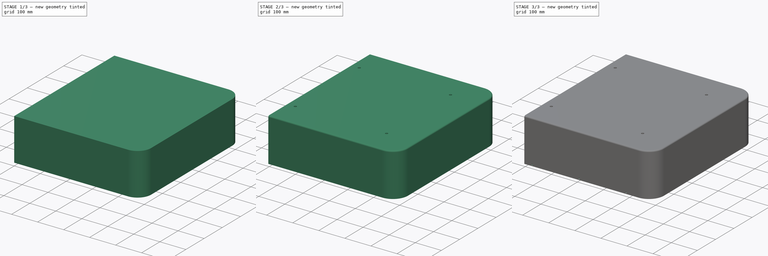
[diagram: build sequence overview — one tinted view per stage of 3, left to right]
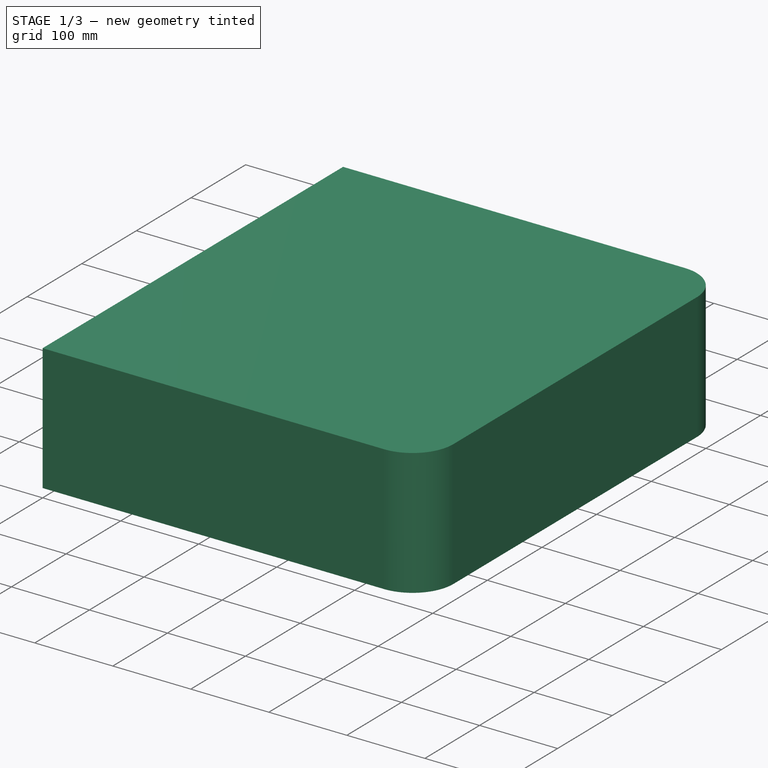
[diagram: stage 1 of 3 — iso view after this stage's code; geometry added in this stage tinted green]
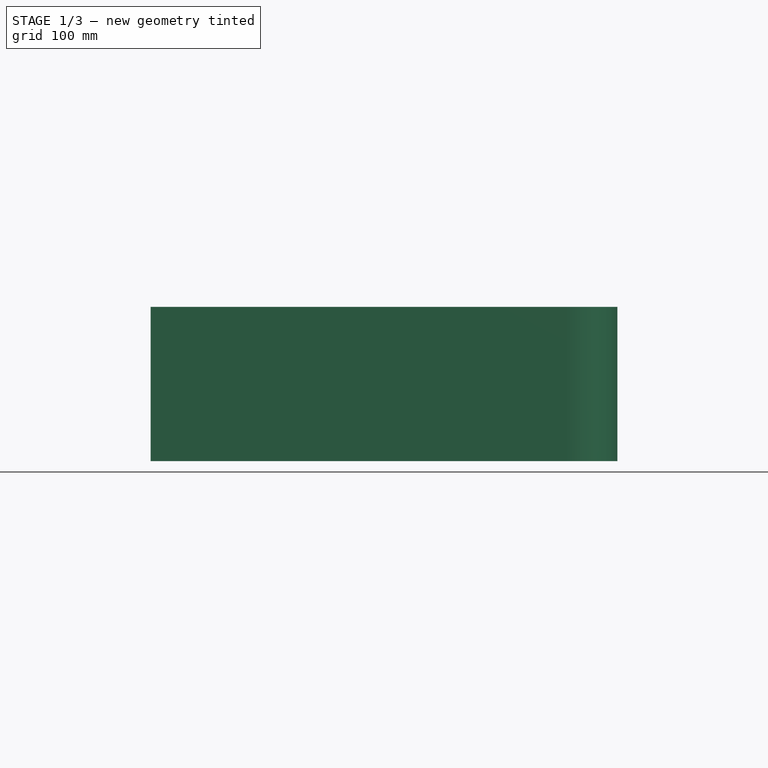
[diagram: stage 1 of 3 — front view after this stage's code; geometry added in this stage tinted green]
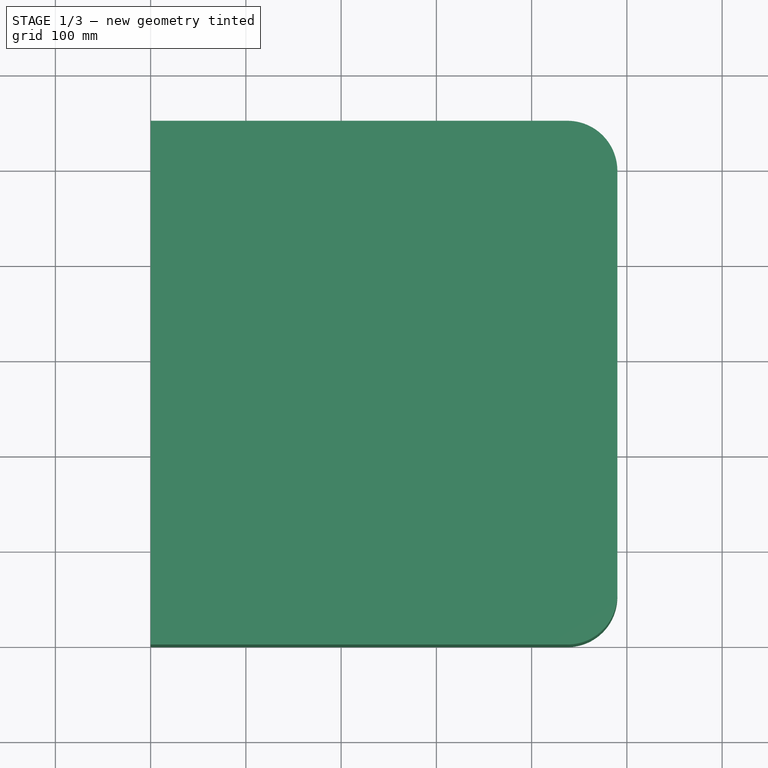
[diagram: stage 1 of 3 — top view after this stage's code; geometry added in this stage tinted green]
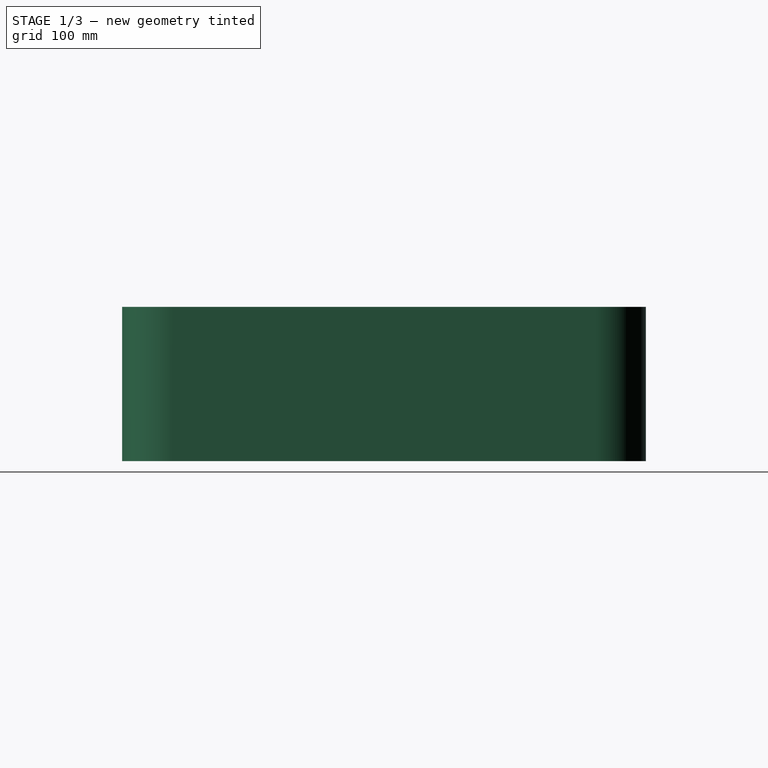
[diagram: stage 1 of 3 — right view after this stage's code; geometry added in this stage tinted green]
FCSTD DOCUMENT  (FreeCAD 0.20R29410 (Git))
Label: AGV02-104A_Top cover
License: All rights reserved
LicenseURL: http://en.wikipedia.org/wiki/All_rights_reserved
objects: Sketcher::SketchObject×4, PartDesign::Pocket×2, PartDesign::Pad×1, PartDesign::Fillet×1, PartDesign::Thickness×1, PartDesign::Hole×1, PartDesign::Plane×1, PartDesign::Mirrored×1, PartDesign::Body×1
note: 19 computed .brp shape members not serialized (recipe doc carries the construction recipe); baked Part::Feature solids carry a one-line shape summary decoded from their .brp

FEATURE [Sketcher::SketchObject] Sketch
  FullyConstrained = true
  MapMode = 5
  Support = -> [XY_Plane]
  sketch-geometry (4):
    g0: LineSegment StartX=0 StartY=0 StartZ=0 EndX=490 EndY=0 EndZ=0
    g1: LineSegment StartX=490 StartY=0 StartZ=0 EndX=490 EndY=550 EndZ=0
    g2: LineSegment StartX=490 StartY=550 StartZ=0 EndX=0 EndY=550 EndZ=0
    g3: LineSegment StartX=0 StartY=550 StartZ=0 EndX=0 EndY=0 EndZ=0
  constraints (11):
    c: Coincident(g0,g1)
    c: Coincident(g1,g2)
    c: Coincident(g2,g3)
    c: Coincident(g3,g0)
    c: Horizontal(g0)
    c: Horizontal(g2)
    c: Vertical(g1)
    c: Vertical(g3)
    c: Coincident(g0,g-1)
    c: DistanceX(g0,g0) = 490
    c: DistanceY(g3,g3) = 550
FEATURE [PartDesign::Pad] Pad
  Direction = (0,0,1)
  Length = 162
  Length2 = 10
  Profile = -> Sketch
  ReferenceAxis = -> Sketch [N_Axis]
  Type = 0
FEATURE [PartDesign::Fillet] Fillet
  Base = -> Pad [Edge2,Edge5]
  BaseFeature = -> Pad
  Radius = 52.5
  SupportTransform = false
  UseAllEdges = false
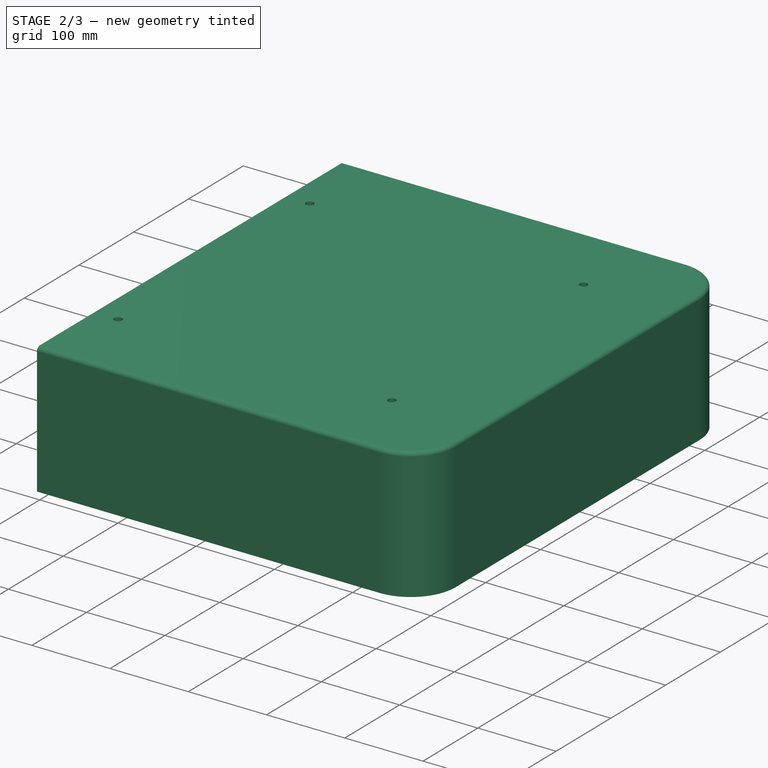
[diagram: stage 2 of 3 — iso view after this stage's code; geometry added in this stage tinted green]
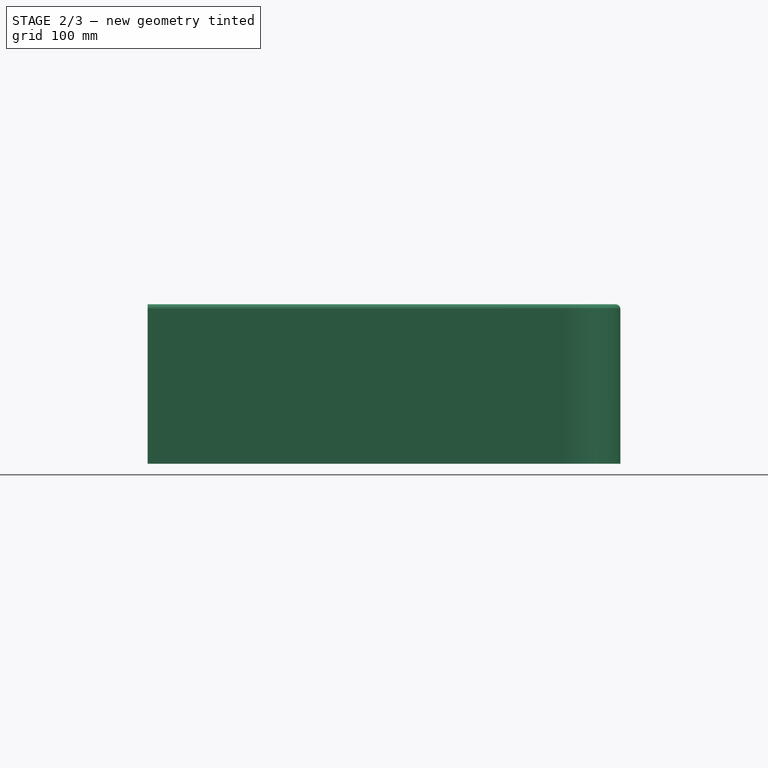
[diagram: stage 2 of 3 — front view after this stage's code; geometry added in this stage tinted green]
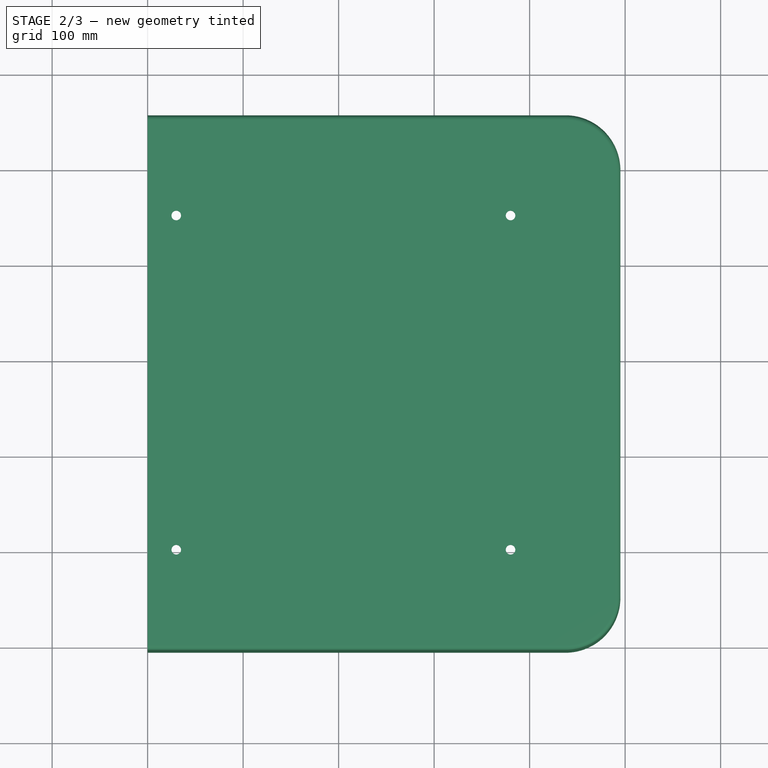
[diagram: stage 2 of 3 — top view after this stage's code; geometry added in this stage tinted green]
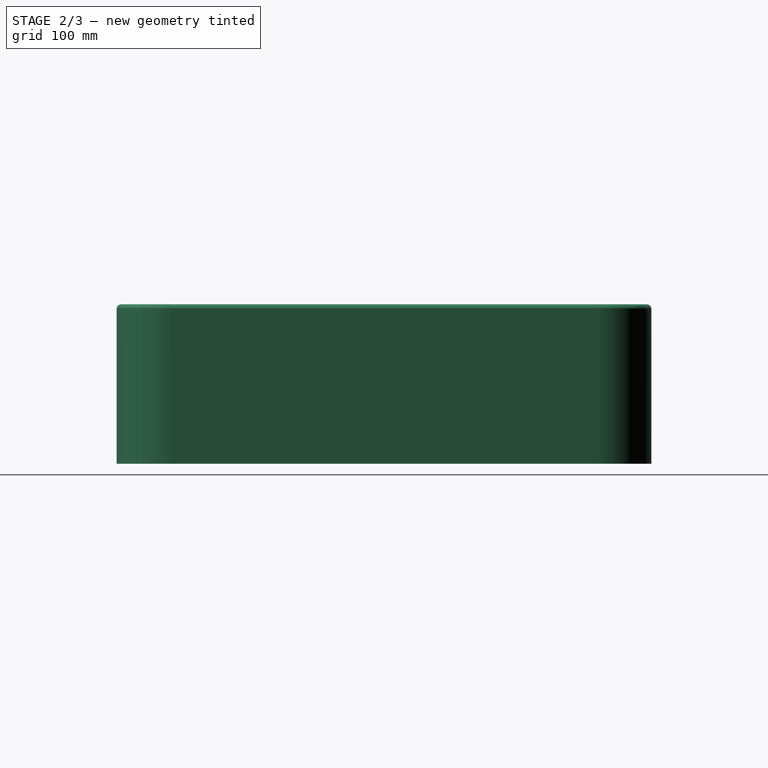
[diagram: stage 2 of 3 — right view after this stage's code; geometry added in this stage tinted green]
FEATURE [PartDesign::Thickness] Thickness
  Base = -> Fillet [Face2]
  BaseFeature = -> Fillet
  Intersection = false
  Join = 0
  Mode = 0
  SupportTransform = false
  Value = 5
FEATURE [Sketcher::SketchObject] Sketch001
  FullyConstrained = false
  MapMode = 5
  Placement = pos=(-5,0,0) rot=(0.57735,-0.57735,-0.57735;2.0944rad)
  Support = -> [Thickness]
  sketch-geometry (4):
    g0: LineSegment StartX=-647.152 StartY=227.302 StartZ=0 EndX=27.9367 EndY=227.302 EndZ=0
    g1: LineSegment StartX=27.9367 StartY=227.302 StartZ=0 EndX=27.9367 EndY=-35.5798 EndZ=0
    g2: LineSegment StartX=27.9367 StartY=-35.5798 StartZ=0 EndX=-647.152 EndY=-35.5798 EndZ=0
    g3: LineSegment StartX=-647.152 StartY=-35.5798 StartZ=0 EndX=-647.152 EndY=227.302 EndZ=0
  constraints (8):
    c: Coincident(g0,g1)
    c: Coincident(g1,g2)
    c: Coincident(g2,g3)
    c: Coincident(g3,g0)
    c: Horizontal(g0)
    c: Horizontal(g2)
    c: Vertical(g1)
    c: Vertical(g3)
FEATURE [PartDesign::Pocket] Pocket
  BaseFeature = -> Thickness
  Direction = (1,0,0)
  Length = 5
  Length2 = 5
  Profile = -> Sketch001
  ReferenceAxis = -> Sketch001 [N_Axis]
  Type = 0
FEATURE [Sketcher::SketchObject] Sketch002
  FullyConstrained = true
  MapMode = 5
  Placement = pos=(0,0,167) rot=(0,0,1;0rad)
  Support = -> [Pocket]
  sketch-geometry (4):
    g0: Circle CenterX=380 CenterY=100 CenterZ=0 NormalX=0 NormalY=0 NormalZ=1 AngleXU=0 Radius=5
    g1: Circle CenterX=30 CenterY=100 CenterZ=0 NormalX=0 NormalY=0 NormalZ=1 AngleXU=0 Radius=5
    g2: Circle CenterX=30 CenterY=450 CenterZ=0 NormalX=0 NormalY=0 NormalZ=1 AngleXU=0 Radius=5
    g3: Circle CenterX=380 CenterY=450 CenterZ=0 NormalX=0 NormalY=0 NormalZ=1 AngleXU=0 Radius=5
  constraints (12):
    c: Diameter(g0) = 10
    c: Diameter(g1) = 10
    c: Diameter(g2) = 10
    c: Diameter(g3) = 10
    c: Horizontal(g3,g2)
    c: Horizontal(g1,g0)
    c: Vertical(g0,g3)
    c: Vertical(g1,g2)
    c: DistanceX(g2,g3) = 350
    c: DistanceY(g0,g3) = 350
    c: DistanceY(g-1,g1) = 100
    c: DistanceX(g-1,g0) = 380
FEATURE [PartDesign::Pocket] Pocket001
  BaseFeature = -> Pocket
  Direction = (0,0,-1)
  Length = 5
  Length2 = 5
  Profile = -> Sketch002
  ReferenceAxis = -> Sketch002 [N_Axis]
  Type = 1
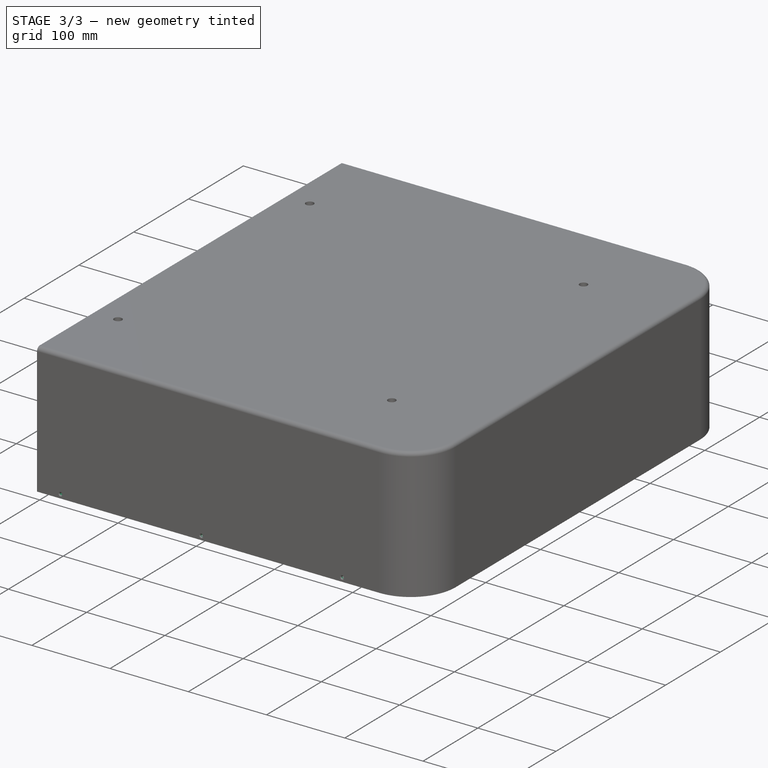
[diagram: stage 3 of 3 — iso view after this stage's code; geometry added in this stage tinted green]
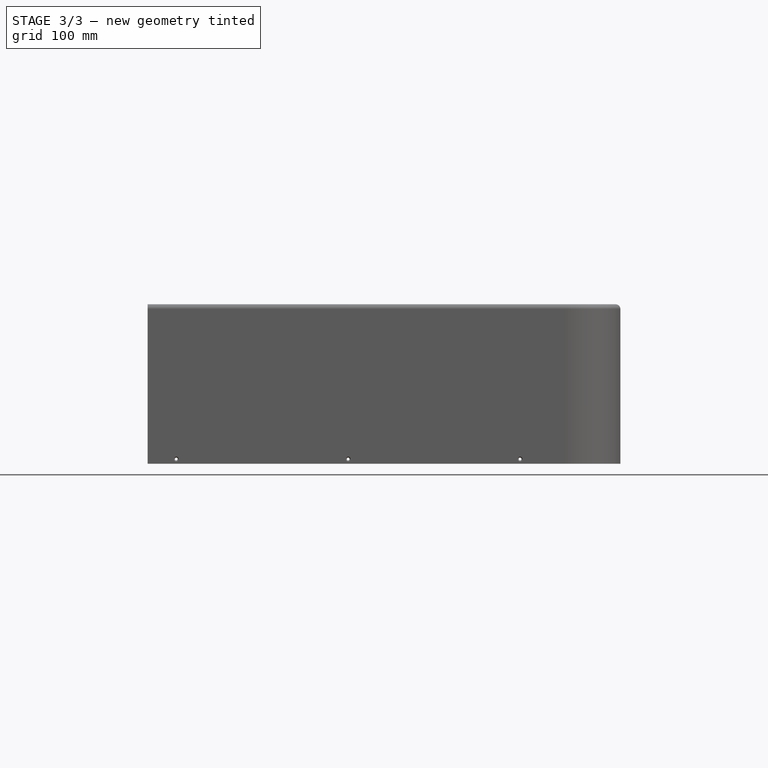
[diagram: stage 3 of 3 — front view after this stage's code; geometry added in this stage tinted green]
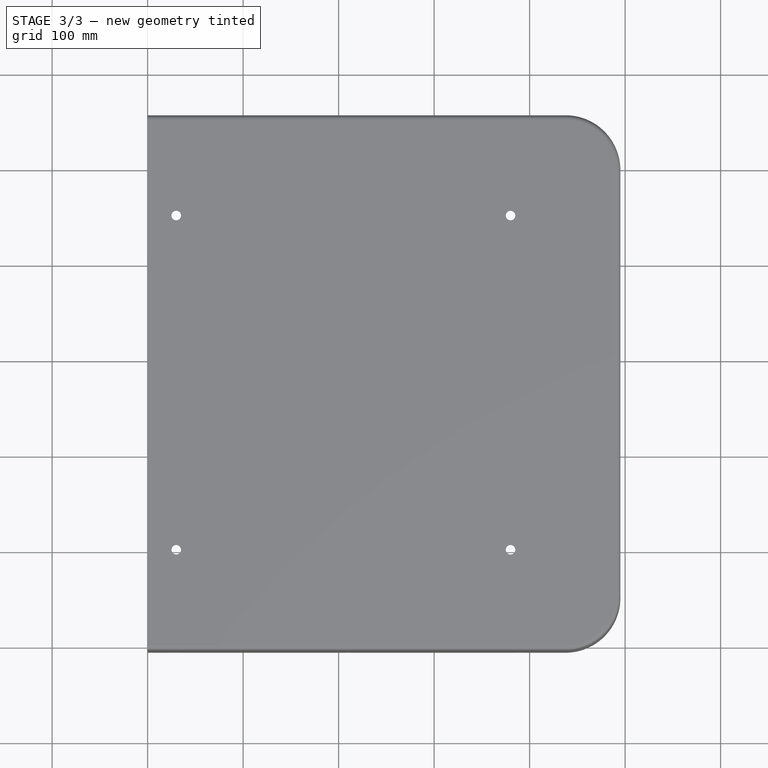
[diagram: stage 3 of 3 — top view after this stage's code; geometry added in this stage tinted green]
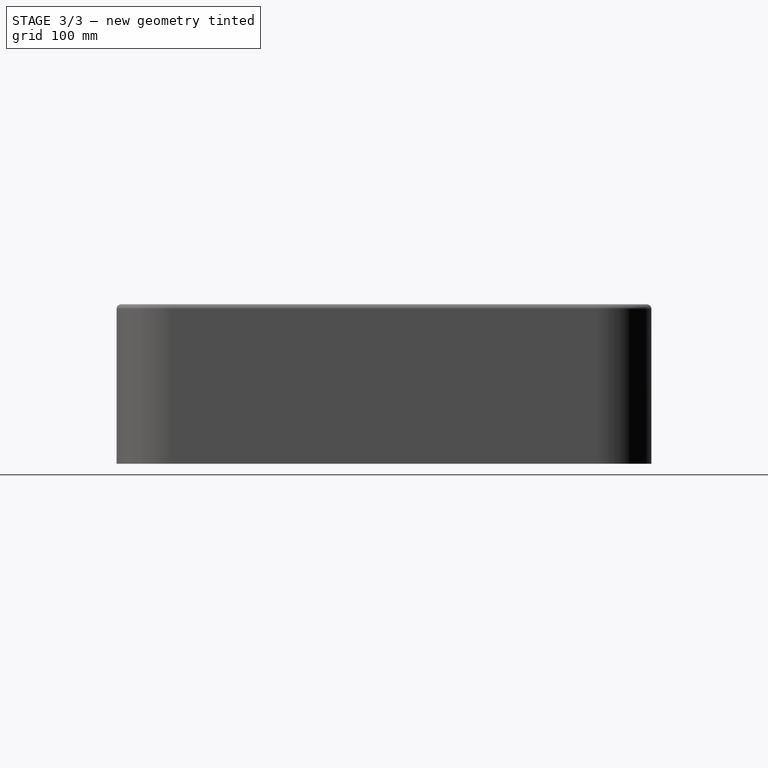
[diagram: stage 3 of 3 — right view after this stage's code; geometry added in this stage tinted green]
FEATURE [Sketcher::SketchObject] Sketch003
  FullyConstrained = false
  MapMode = 5
  Placement = pos=(0,-5,0) rot=(1,0,0;1.5708rad)
  Support = -> [Pocket001]
  sketch-geometry (3):
    g0: Circle CenterX=30 CenterY=5 CenterZ=0 NormalX=0 NormalY=0 NormalZ=1 AngleXU=0 Radius=3.18237
    g1: Circle CenterX=210 CenterY=5 CenterZ=0 NormalX=0 NormalY=0 NormalZ=1 AngleXU=0 Radius=2.40321
    g2: Circle CenterX=390 CenterY=5 CenterZ=0 NormalX=0 NormalY=0 NormalZ=1 AngleXU=0 Radius=3.87905
  constraints (6):
    c: Horizontal(g0,g1)
    c: Horizontal(g1,g2)
    c: DistanceY(g-1,g0) = 5
    c: DistanceX(g0,g1) = 180
    c: DistanceX(g-1,g0) = 30
    c: DistanceX(g1,g2) = 180
FEATURE [PartDesign::Hole] Hole
  BaseFeature = -> Pocket001
  CustomThreadClearance = 0
  Depth = 25
  DepthType = 0
  Diameter = 3
  DrillForDepth = false
  DrillPoint = 1
  DrillPointAngle = 118
  HoleCutCountersinkAngle = 90
  HoleCutCustomValues = false
  HoleCutDepth = 0
  HoleCutDiameter = 5
  HoleCutType = 2
  ModelThread = false
  Profile = -> Sketch003
  Tapered = false
  TaperedAngle = 90
  ThreadClass = 0
  ThreadDepth = 25
  ThreadDepthType = 0
  ThreadDirection = 0
  ThreadFit = 0
  ThreadSize = 0
  ThreadType = 0
  Threaded = false
  UseCustomThreadClearance = false
FEATURE [PartDesign::Plane] DatumPlane
  AttachmentOffset = pos=(0,0,0) rot=(1,0,0;1.5708rad)
  Length = 583.222
  MapMode = 45
  Placement = pos=(218.754,275.116,81.0316) rot=(1,1.8e-05,-2e-06;1.57068rad)
  ResizeMode = 0
  Support = -> [Hole]
  Width = 255.286
FEATURE [PartDesign::Mirrored] Mirrored
  BaseFeature = -> Hole
  MirrorPlane = -> DatumPlane
  Originals = -> [Hole]
FEATURE [PartDesign::Body] Body
  Group = -> [Sketch,Pad,Fillet,Thickness,Sketch001,Pocket,Sketch002,Pocket001,Sketch003,Hole,DatumPlane,Mirrored]
  Origin = -> Origin
  Tip = -> Mirrored
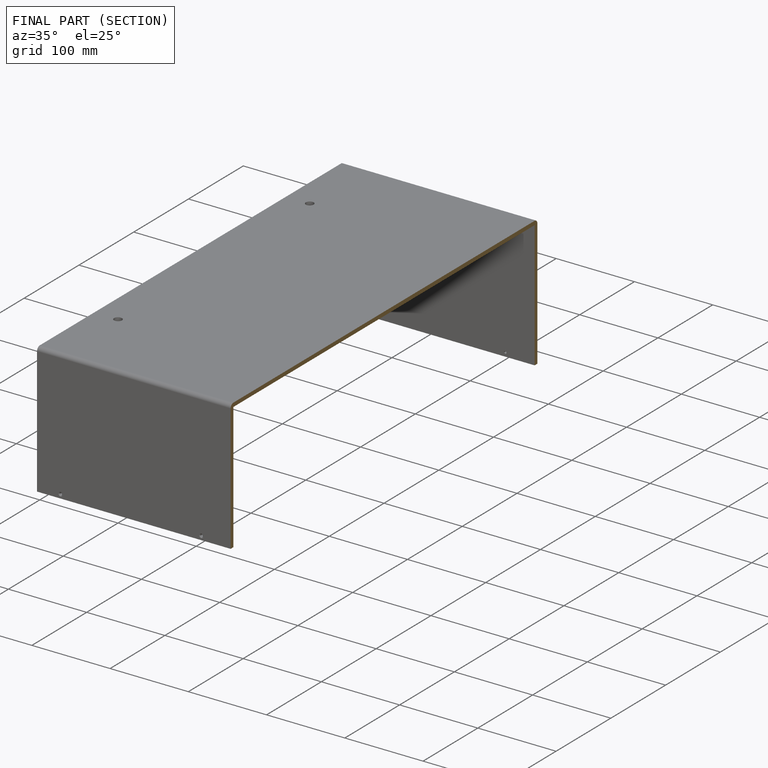
[diagram: finished part — half-section view (interior)]
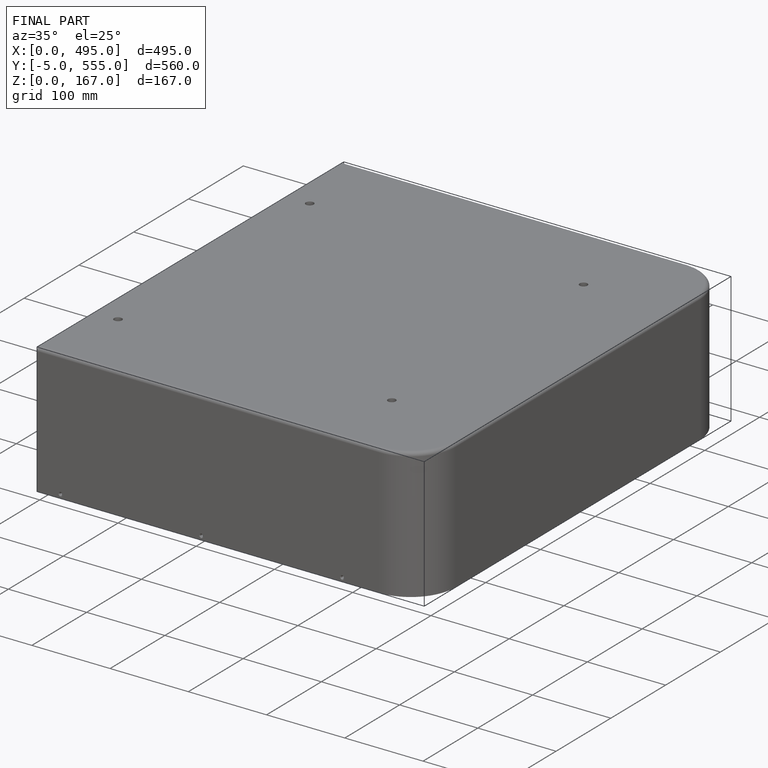
[diagram: finished part — iso view with bounding-box wireframe]
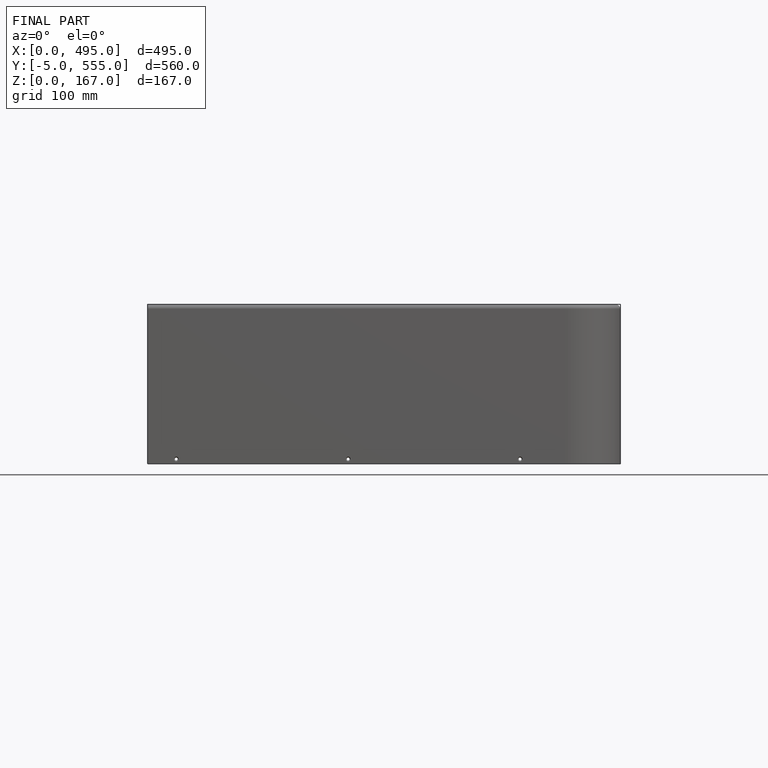
[diagram: finished part — front view with bounding-box wireframe]
